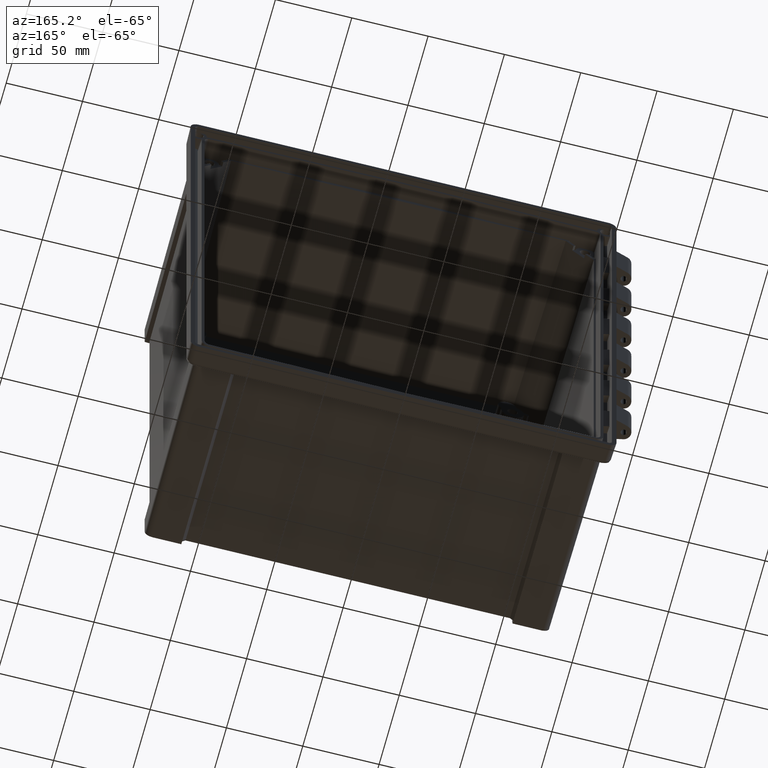
[diagram: clean part render]
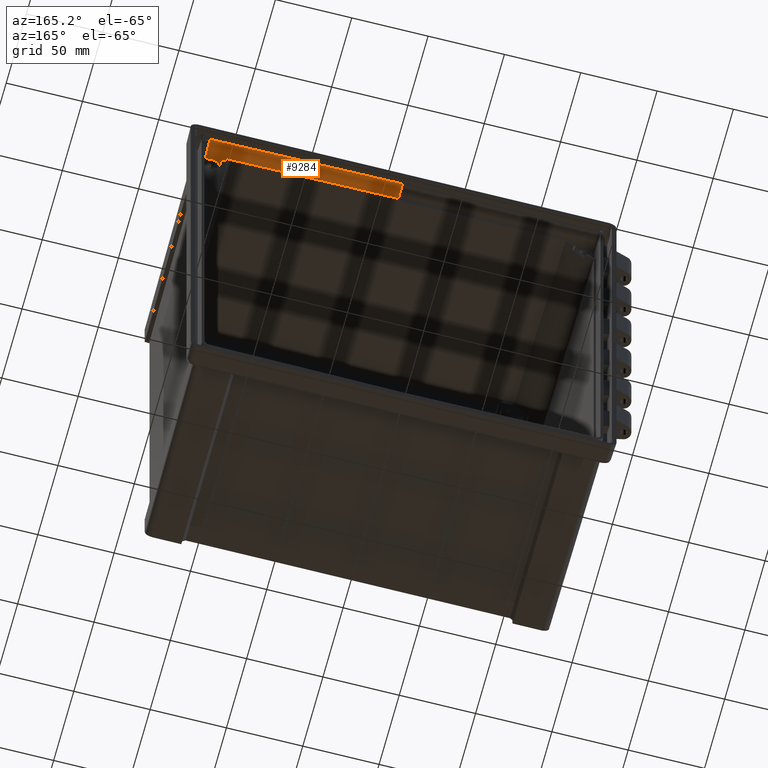
[diagram: same view with one face highlighted and labeled with its STEP entity id]
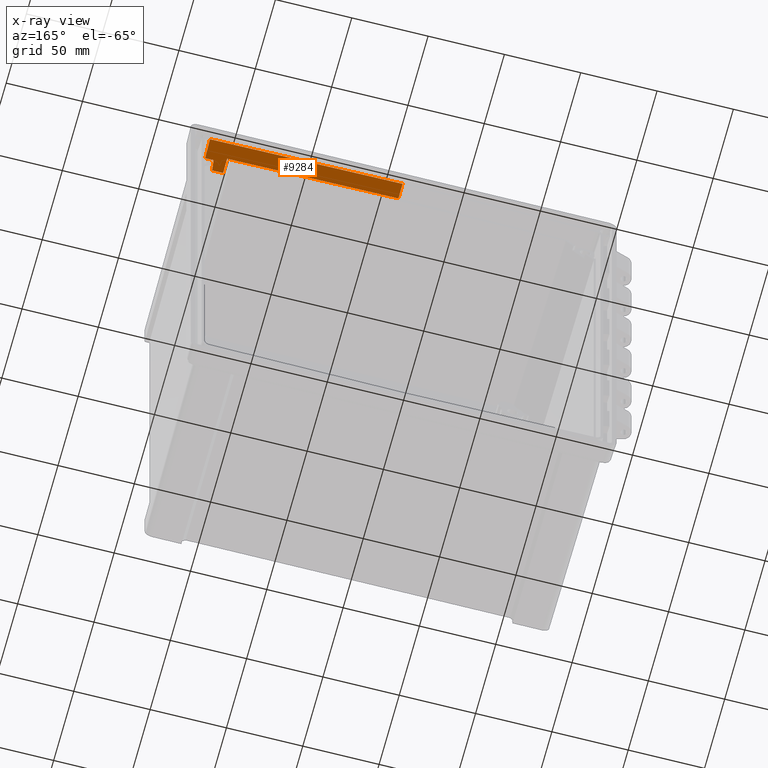
[diagram: x-ray of the same camera — body ghosted, the highlighted face saturated]
A machine part, auxiliary view. The second image highlights one B-rep face of the part: STEP entity #9284.
The next image is the same camera in x-ray: the body ghosted, the highlighted face saturated — about 0% of this face is hidden behind the body in this view.
In plain terms, the highlighted planar face has unit normal (-0.0174, 0.0349, -0.9992).
Its self-contained STEP definition (entity closure, byte-faithful):
#138 = CARTESIAN_POINT ( 'NONE',  ( 112.1968731961302800, -12.84933532198745000, 153.9602855411183100 ) ) ;
#140 = DIRECTION ( 'NONE',  ( 0.9998476951563911600, 0.0000000000000000000, -0.01745240643728295000 ) ) ;
#141 = VECTOR ( 'NONE', #140, 1000.000000000000200 ) ;
#142 = CARTESIAN_POINT ( 'NONE',  ( 129.6404621624618300, -12.84933532198744600, 153.6558065631298900 ) ) ;
#143 = LINE ( 'NONE', #142, #141 ) ;
#144 = CARTESIAN_POINT ( 'NONE',  ( -8.988810877508225900E-015, -12.84933532198744600, 155.9186892474997100 ) ) ;
#888 = CARTESIAN_POINT ( 'NONE',  ( 120.2780062756452700, -15.84933532198744600, 153.7144505718090100 ) ) ;
#889 = DIRECTION ( 'NONE',  ( 0.9998476951563912700, 0.0000000000000000000, -0.01745240643728173500 ) ) ;
#890 = VECTOR ( 'NONE', #889, 1000.000000000000000 ) ;
#891 = CARTESIAN_POINT ( 'NONE',  ( 124.8457253891055400, -15.84933532198744600, 153.6347207381097100 ) ) ;
#892 = LINE ( 'NONE', #891, #890 ) ;
#9062 = VERTEX_POINT ( 'NONE', #15823 ) ;
#9064 = EDGE_CURVE ( 'NONE', #9119, #9062, #15822, .T. ) ;
#9119 = VERTEX_POINT ( 'NONE', #15945 ) ;
#9271 = ORIENTED_EDGE ( 'NONE', *, *, #9272, .F. ) ;
#9272 = EDGE_CURVE ( 'NONE', #10444, #9294, #16229, .T. ) ;
#9273 = ORIENTED_EDGE ( 'NONE', *, *, #10442, .F. ) ;
#9274 = ORIENTED_EDGE ( 'NONE', *, *, #9275, .F. ) ;
#9275 = EDGE_CURVE ( 'NONE', #9288, #10440, #16225, .T. ) ;
#9284 = ADVANCED_FACE ( 'NONE', ( #16272 ), #16264, .T. ) ;
#9285 = EDGE_LOOP ( 'NONE', ( #9286, #9289, #9290, #9291, #9292, #9271, #9273, #9274 ) ) ;
#9286 = ORIENTED_EDGE ( 'NONE', *, *, #9287, .F. ) ;
#9287 = EDGE_CURVE ( 'NONE', #9119, #9288, #16271, .T. ) ;
#9288 = VERTEX_POINT ( 'NONE', #16256 ) ;
#9289 = ORIENTED_EDGE ( 'NONE', *, *, #9064, .T. ) ;
#9290 = ORIENTED_EDGE ( 'NONE', *, *, #10861, .F. ) ;
#9291 = ORIENTED_EDGE ( 'NONE', *, *, #9300, .F. ) ;
#9292 = ORIENTED_EDGE ( 'NONE', *, *, #9293, .F. ) ;
#9293 = EDGE_CURVE ( 'NONE', #9294, #9298, #16312, .T. ) ;
#9294 = VERTEX_POINT ( 'NONE', #16308 ) ;
#9298 = VERTEX_POINT ( 'NONE', #16302 ) ;
#9300 = EDGE_CURVE ( 'NONE', #9298, #10862, #16301, .T. ) ;
#10440 = VERTEX_POINT ( 'NONE', #144 ) ;
#10442 = EDGE_CURVE ( 'NONE', #10440, #10444, #143, .T. ) ;
#10444 = VERTEX_POINT ( 'NONE', #138 ) ;
#10861 = EDGE_CURVE ( 'NONE', #10862, #9062, #892, .T. ) ;
#10862 = VERTEX_POINT ( 'NONE', #888 ) ;
#15814 = DIRECTION ( 'NONE',  ( -0.03487899055459543800, -0.9988036077738137200, -0.03427548855823895500 ) ) ;
#15815 = VECTOR ( 'NONE', #15814, 1000.000000000000100 ) ;
#15816 = CARTESIAN_POINT ( 'NONE',  ( 126.1965968399433500, -2.882324268663579900, 154.0640281700965800 ) ) ;
#15822 = LINE ( 'NONE', #15816, #15815 ) ;
#15823 = CARTESIAN_POINT ( 'NONE',  ( 125.7437788359532500, -15.84933532198744600, 153.6190451568859900 ) ) ;
#15945 = CARTESIAN_POINT ( 'NONE',  ( 126.2099478976004600, -2.500000000000000000, 154.0771482179158900 ) ) ;
#16224 = CARTESIAN_POINT ( 'NONE',  ( -1.919009788439499300E-014, -3.000000000000000000, 156.2626880086032800 ) ) ;
#16225 = LINE ( 'NONE', #16224, #16285 ) ;
#16226 = DIRECTION ( 'NONE',  ( -0.003661908421782209600, -0.9993861685392695400, -0.03484073132282313600 ) ) ;
#16227 = VECTOR ( 'NONE', #16226, 1000.000000000000200 ) ;
#16228 = CARTESIAN_POINT ( 'NONE',  ( 112.2317076573386500, -3.342522286171778500, 154.2917133006212100 ) ) ;
#16229 = LINE ( 'NONE', #16228, #16227 ) ;
#16256 = CARTESIAN_POINT ( 'NONE',  ( -1.054402573214369600E-014, -2.500000000000000000, 156.2801510530553900 ) ) ;
#16257 = DIRECTION ( 'NONE',  ( -0.9998476951563911600, 0.0000000000000000000, 0.01745240643728298100 ) ) ;
#16258 = VECTOR ( 'NONE', #16257, 1000.000000000000100 ) ;
#16259 = CARTESIAN_POINT ( 'NONE',  ( 0.0003047257311171369900, -2.500000000000000000, 156.2801457340479800 ) ) ;
#16260 = DIRECTION ( 'NONE',  ( 0.0000000000000000000, 0.9993906415863165200, 0.03490480639812536300 ) ) ;
#16261 = DIRECTION ( 'NONE',  ( -0.01744177490282963100, 0.03489949670250104600, -0.9992386149554826100 ) ) ;
#16262 = CARTESIAN_POINT ( 'NONE',  ( -1.919009788439499300E-014, -3.000000000000000000, 156.2626880086032800 ) ) ;
#16263 = AXIS2_PLACEMENT_3D ( 'NONE', #16262, #16261, #16260 ) ;
#16264 = PLANE ( 'NONE',  #16263 ) ;
#16271 = LINE ( 'NONE', #16259, #16258 ) ;
#16272 = FACE_OUTER_BOUND ( 'NONE', #9285, .T. ) ;
#16284 = DIRECTION ( 'NONE',  ( 3.978797875466815400E-016, -0.9993906415863165200, -0.03490480639812536300 ) ) ;
#16285 = VECTOR ( 'NONE', #16284, 1000.000000000000200 ) ;
#16296 = CARTESIAN_POINT ( 'NONE',  ( 120.2780062756452700, -15.84933532198744600, 153.7144505718090100 ) ) ;
#16297 = CARTESIAN_POINT ( 'NONE',  ( 119.9312292227442200, -18.22680897257065200, 153.6374677316952700 ) ) ;
#16298 = CARTESIAN_POINT ( 'NONE',  ( 119.6397338222901500, -20.61176432537645200, 153.5592586401516800 ) ) ;
#16299 = CARTESIAN_POINT ( 'NONE',  ( 119.3724764368288500, -23.00000000000000000, 153.4805119036712400 ) ) ;
#16301 = B_SPLINE_CURVE_WITH_KNOTS ( 'NONE', 3,
 ( #16299, #16298, #16297, #16296 ),
 .UNSPECIFIED., .F., .F.,
 ( 4, 4 ),
 ( 2.012994709452778800E-007, 0.007211460275223721700 ),
 .UNSPECIFIED. ) ;
#16302 = CARTESIAN_POINT ( 'NONE',  ( 119.3724764368288500, -23.00000000000000000, 153.4805119036712400 ) ) ;
#16308 = CARTESIAN_POINT ( 'NONE',  ( 112.1596795610358200, -23.00000000000000000, 153.6064117414522300 ) ) ;
#16309 = DIRECTION ( 'NONE',  ( 0.9998476951563911600, 0.0000000000000000000, -0.01745240643728298100 ) ) ;
#16310 = VECTOR ( 'NONE', #16309, 1000.000000000000100 ) ;
#16311 = CARTESIAN_POINT ( 'NONE',  ( -0.01218902924547227700, -23.00000000000000000, 155.5643789908150400 ) ) ;
#16312 = LINE ( 'NONE', #16311, #16310 ) ;